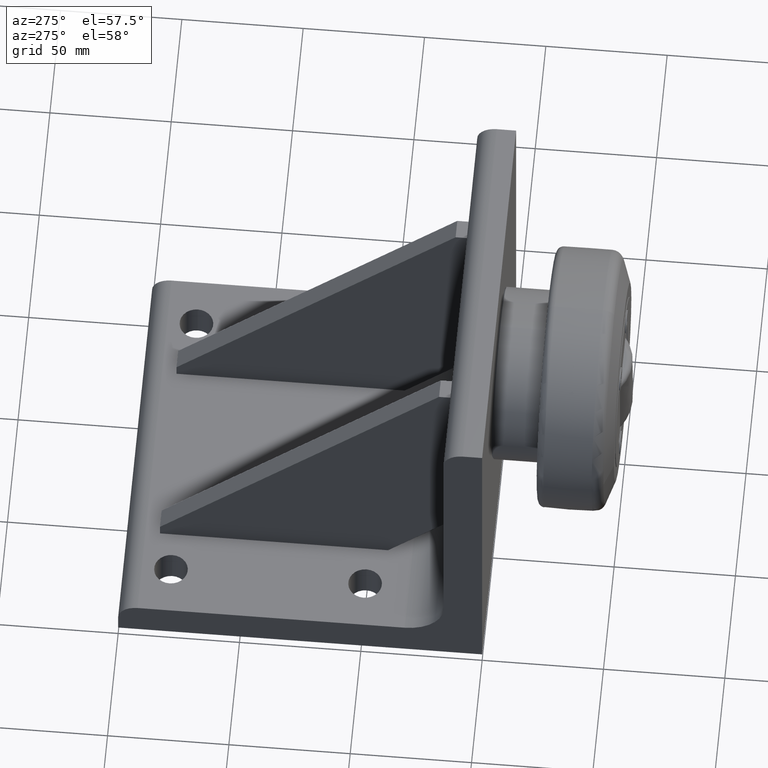
[diagram: clean part render]
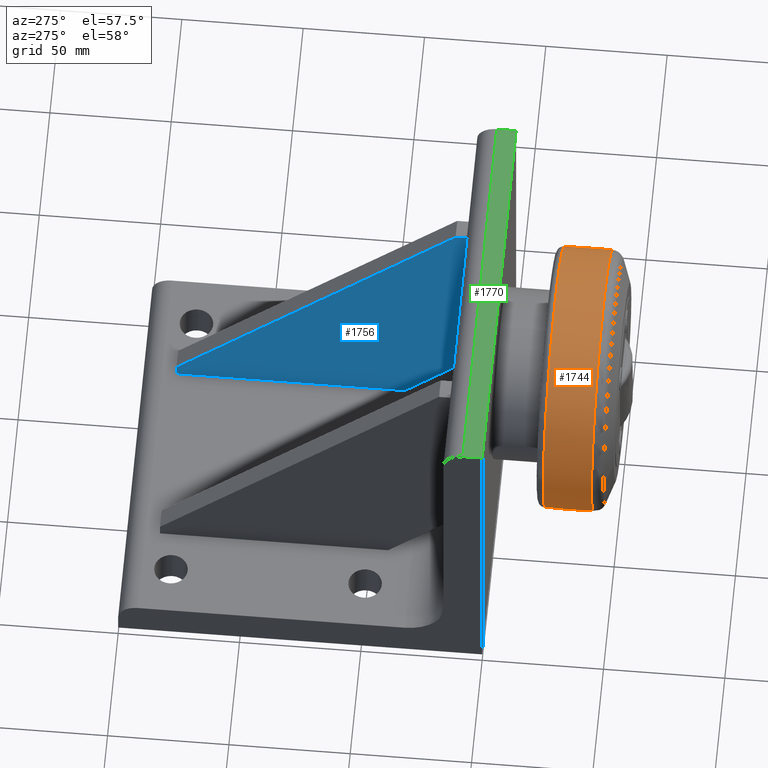
[diagram: same view with three faces highlighted in distinct colors, each labeled with its STEP entity id]
A machine part, auxiliary view with three faces highlighted in distinct colors.
Their STEP definitions:

[orange] entity #1744 — the highlighted face is a freeform B-spline surface patch.
#29=(
BOUNDED_SURFACE()
B_SPLINE_SURFACE(2,2,((#2728,#2729,#2730,#2731,#2732,#2733,#2734,#2735,
#2736),(#2737,#2738,#2739,#2740,#2741,#2742,#2743,#2744,#2745),(#2746,#2747,
#2748,#2749,#2750,#2751,#2752,#2753,#2754)),.UNSPECIFIED.,.F.,.T.,.F.)
B_SPLINE_SURFACE_WITH_KNOTS((3,3),(3,2,2,2,3),(-0.0125379413299395,0.00736868647402721),
(-3.14159265358979,-1.5707963267949,0.,1.5707963267949,3.14159265358979),
 .UNSPECIFIED.)
GEOMETRIC_REPRESENTATION_ITEM()
RATIONAL_B_SPLINE_SURFACE(((1.,0.707106781186548,1.,0.707106781186548,1.,
0.707106781186548,1.,0.707106781186548,1.),(0.999950466180123,0.707071755486614,
0.999950466180123,0.707071755486614,0.999950466180123,0.707071755486614,
0.999950466180123,0.707071755486614,0.999950466180123),(1.,0.707106781186548,
1.,0.707106781186548,1.,0.707106781186548,1.,0.707106781186548,1.)))
REPRESENTATION_ITEM('')
SURFACE()
);
#87=CIRCLE('',#1884,53.8228513526661);
#88=CIRCLE('',#1885,53.8228513526661);
#90=CIRCLE('',#1887,1000.);
#91=CIRCLE('',#1888,53.7714010432579);
#92=CIRCLE('',#1889,53.7714010432579);
#199=FACE_OUTER_BOUND('',#306,.T.);
#306=EDGE_LOOP('',(#1305,#1306,#1307,#1308,#1309,#1310));
#787=VERTEX_POINT('',#2722);
#788=VERTEX_POINT('',#2724);
#789=VERTEX_POINT('',#2755);
#790=VERTEX_POINT('',#2757);
#987=EDGE_CURVE('',#787,#788,#87,.T.);
#988=EDGE_CURVE('',#788,#787,#88,.T.);
#990=EDGE_CURVE('',#787,#789,#90,.T.);
#991=EDGE_CURVE('',#790,#789,#91,.T.);
#992=EDGE_CURVE('',#789,#790,#92,.T.);
#1305=ORIENTED_EDGE('',*,*,#988,.F.);
#1306=ORIENTED_EDGE('',*,*,#987,.F.);
#1307=ORIENTED_EDGE('',*,*,#990,.T.);
#1308=ORIENTED_EDGE('',*,*,#991,.F.);
#1309=ORIENTED_EDGE('',*,*,#992,.F.);
#1310=ORIENTED_EDGE('',*,*,#990,.F.);
#1744=ADVANCED_FACE('',(#199),#29,.F.);
#1884=AXIS2_PLACEMENT_3D('',#2725,#2197,#2198);
#1885=AXIS2_PLACEMENT_3D('',#2726,#2199,#2200);
#1887=AXIS2_PLACEMENT_3D('',#2756,#2203,#2204);
#1888=AXIS2_PLACEMENT_3D('',#2758,#2205,#2206);
#1889=AXIS2_PLACEMENT_3D('',#2759,#2207,#2208);
#2197=DIRECTION('center_axis',(3.44201606106068E-16,-1.,9.60310883656577E-18));
#2198=DIRECTION('ref_axis',(-1.,-3.04246343416414E-16,-4.04895301314711E-16));
#2199=DIRECTION('center_axis',(3.44201606106068E-16,-1.,9.60310883656577E-18));
#2200=DIRECTION('ref_axis',(-1.,-3.04246343416414E-16,-4.04895301314711E-16));
#2203=DIRECTION('center_axis',(-1.,-3.44201606106068E-16,-6.59742558737325E-16));
#2204=DIRECTION('ref_axis',(-6.59742558737325E-16,0.,1.));
#2205=DIRECTION('center_axis',(-3.44201606106068E-16,1.,-9.60310883656577E-18));
#2206=DIRECTION('ref_axis',(-1.,-3.45619473763267E-16,-4.04895301314712E-16));
#2207=DIRECTION('center_axis',(-3.44201606106068E-16,1.,-9.60310883656577E-18));
#2208=DIRECTION('ref_axis',(-1.,-3.45619473763267E-16,-4.04895301314712E-16));
#2722=CARTESIAN_POINT('',(80.,-42.7686197906162,143.822851352666));
#2724=CARTESIAN_POINT('',(133.822851352666,-42.7686197906162,90.));
#2725=CARTESIAN_POINT('Origin',(80.,-42.7686197906162,90.));
#2726=CARTESIAN_POINT('Origin',(80.,-42.7686197906162,90.));
#2728=CARTESIAN_POINT('Ctrl Pts',(80.,-22.8623871614844,143.771401043258));
#2729=CARTESIAN_POINT('Ctrl Pts',(26.2285989567422,-22.8623871614844,143.771401043258));
#2730=CARTESIAN_POINT('Ctrl Pts',(26.2285989567422,-22.8623871614844,89.9999999999999));
#2731=CARTESIAN_POINT('Ctrl Pts',(26.2285989567422,-22.8623871614844,36.2285989567422));
#2732=CARTESIAN_POINT('Ctrl Pts',(80.,-22.8623871614844,36.2285989567422));
#2733=CARTESIAN_POINT('Ctrl Pts',(133.771401043258,-22.8623871614843,36.2285989567422));
#2734=CARTESIAN_POINT('Ctrl Pts',(133.771401043258,-22.8623871614843,90.));
#2735=CARTESIAN_POINT('Ctrl Pts',(133.771401043258,-22.8623871614843,143.771401043258));
#2736=CARTESIAN_POINT('Ctrl Pts',(80.,-22.8623871614844,143.771401043258));
#2737=CARTESIAN_POINT('Ctrl Pts',(80.,-32.8152474170544,143.896195960528));
#2738=CARTESIAN_POINT('Ctrl Pts',(26.1038040394717,-32.8152474170545,143.896195960528));
#2739=CARTESIAN_POINT('Ctrl Pts',(26.1038040394717,-32.8152474170545,89.9999999999999));
#2740=CARTESIAN_POINT('Ctrl Pts',(26.1038040394718,-32.8152474170545,36.1038040394717));
#2741=CARTESIAN_POINT('Ctrl Pts',(80.,-32.8152474170544,36.1038040394717));
#2742=CARTESIAN_POINT('Ctrl Pts',(133.896195960528,-32.8152474170544,36.1038040394717));
#2743=CARTESIAN_POINT('Ctrl Pts',(133.896195960528,-32.8152474170544,90.));
#2744=CARTESIAN_POINT('Ctrl Pts',(133.896195960528,-32.8152474170544,143.896195960528));
#2745=CARTESIAN_POINT('Ctrl Pts',(80.,-32.8152474170544,143.896195960528));
#2746=CARTESIAN_POINT('Ctrl Pts',(80.,-42.7686197906161,143.822851352666));
#2747=CARTESIAN_POINT('Ctrl Pts',(26.1771486473338,-42.7686197906161,143.822851352666));
#2748=CARTESIAN_POINT('Ctrl Pts',(26.1771486473338,-42.7686197906161,89.9999999999999));
#2749=CARTESIAN_POINT('Ctrl Pts',(26.1771486473339,-42.7686197906161,36.1771486473338));
#2750=CARTESIAN_POINT('Ctrl Pts',(80.,-42.7686197906161,36.1771486473338));
#2751=CARTESIAN_POINT('Ctrl Pts',(133.822851352666,-42.7686197906161,36.1771486473338));
#2752=CARTESIAN_POINT('Ctrl Pts',(133.822851352666,-42.7686197906161,90.));
#2753=CARTESIAN_POINT('Ctrl Pts',(133.822851352666,-42.7686197906161,143.822851352666));
#2754=CARTESIAN_POINT('Ctrl Pts',(80.,-42.7686197906161,143.822851352666));
#2755=CARTESIAN_POINT('',(80.,-22.8623871614844,143.771401043258));
#2756=CARTESIAN_POINT('Origin',(80.0000000000006,-35.3999999999999,-856.15));
#2757=CARTESIAN_POINT('',(133.771401043258,-22.8623871614844,90.));
#2758=CARTESIAN_POINT('Origin',(80.,-22.8623871614844,90.));
#2759=CARTESIAN_POINT('Origin',(80.,-22.8623871614844,90.));

[blue] entity #1756 — the highlighted planar face has unit normal (-1, 0, -0).
#211=FACE_OUTER_BOUND('',#320,.T.);
#320=EDGE_LOOP('',(#1364,#1365,#1366,#1367,#1368,#1369));
#471=LINE('',#2801,#636);
#475=LINE('',#2810,#640);
#479=LINE('',#2818,#644);
#482=LINE('',#2824,#647);
#485=LINE('',#2829,#650);
#486=LINE('',#2830,#651);
#636=VECTOR('',#2253,10.);
#640=VECTOR('',#2259,10.);
#644=VECTOR('',#2265,10.);
#647=VECTOR('',#2270,10.);
#650=VECTOR('',#2275,10.);
#651=VECTOR('',#2276,10.);
#804=VERTEX_POINT('',#2799);
#805=VERTEX_POINT('',#2800);
#808=VERTEX_POINT('',#2808);
#809=VERTEX_POINT('',#2809);
#812=VERTEX_POINT('',#2817);
#814=VERTEX_POINT('',#2823);
#1011=EDGE_CURVE('',#804,#805,#471,.T.);
#1015=EDGE_CURVE('',#808,#809,#475,.T.);
#1019=EDGE_CURVE('',#809,#812,#479,.T.);
#1022=EDGE_CURVE('',#812,#814,#482,.T.);
#1025=EDGE_CURVE('',#814,#804,#485,.T.);
#1026=EDGE_CURVE('',#805,#808,#486,.T.);
#1364=ORIENTED_EDGE('',*,*,#1011,.F.);
#1365=ORIENTED_EDGE('',*,*,#1025,.F.);
#1366=ORIENTED_EDGE('',*,*,#1022,.F.);
#1367=ORIENTED_EDGE('',*,*,#1019,.F.);
#1368=ORIENTED_EDGE('',*,*,#1015,.F.);
#1369=ORIENTED_EDGE('',*,*,#1026,.F.);
#1678=PLANE('',#1911);
#1756=ADVANCED_FACE('',(#211),#1678,.T.);
#1911=AXIS2_PLACEMENT_3D('',#2828,#2273,#2274);
#2253=DIRECTION('',(1.56951843764086E-32,0.707106781186548,-0.707106781186547));
#2259=DIRECTION('',(-2.21963426090634E-32,6.68445617092847E-15,1.));
#2265=DIRECTION('',(-1.56951843764086E-32,-0.707106781186548,0.707106781186547));
#2270=DIRECTION('',(4.39037157942775E-47,-1.,-2.19732802607288E-15));
#2273=DIRECTION('center_axis',(-1.,4.86892989693316E-48,-2.21963426090634E-32));
#2274=DIRECTION('ref_axis',(-2.21963426090634E-32,-4.20971186672632E-16,
1.));
#2275=DIRECTION('',(2.21963426090634E-32,3.14839365192209E-16,-1.));
#2276=DIRECTION('',(-2.80330831107262E-49,1.,2.31986900667943E-16));
#2799=CARTESIAN_POINT('',(115.,16.,42.0050506338833));
#2800=CARTESIAN_POINT('',(115.,42.0050506338833,16.));
#2801=CARTESIAN_POINT('',(115.,16.,42.0050506338833));
#2808=CARTESIAN_POINT('',(115.,136.,16.));
#2809=CARTESIAN_POINT('',(115.,136.,21.));
#2810=CARTESIAN_POINT('',(115.,136.,16.));
#2817=CARTESIAN_POINT('',(115.,21.,136.));
#2818=CARTESIAN_POINT('',(115.,136.,21.));
#2823=CARTESIAN_POINT('',(115.,16.,136.));
#2824=CARTESIAN_POINT('',(115.,21.,136.));
#2828=CARTESIAN_POINT('Origin',(115.,61.589245006533,61.589245006533));
#2829=CARTESIAN_POINT('',(115.,16.,105.794622503267));
#2830=CARTESIAN_POINT('',(115.,38.7946225032665,16.));

[green] entity #1770 — the highlighted planar face has unit normal (0, 0, 1).
#225=FACE_OUTER_BOUND('',#336,.T.);
#336=EDGE_LOOP('',(#1440,#1441,#1442,#1443));
#468=LINE('',#2794,#633);
#515=LINE('',#2916,#680);
#516=LINE('',#2918,#681);
#517=LINE('',#2919,#682);
#633=VECTOR('',#2248,10.);
#680=VECTOR('',#2359,10.);
#681=VECTOR('',#2362,10.);
#682=VECTOR('',#2363,10.);
#801=VERTEX_POINT('',#2791);
#802=VERTEX_POINT('',#2793);
#844=VERTEX_POINT('',#2912);
#845=VERTEX_POINT('',#2914);
#1008=EDGE_CURVE('',#802,#801,#468,.T.);
#1069=EDGE_CURVE('',#845,#844,#515,.T.);
#1070=EDGE_CURVE('',#802,#845,#516,.T.);
#1071=EDGE_CURVE('',#801,#844,#517,.T.);
#1440=ORIENTED_EDGE('',*,*,#1069,.F.);
#1441=ORIENTED_EDGE('',*,*,#1070,.F.);
#1442=ORIENTED_EDGE('',*,*,#1008,.T.);
#1443=ORIENTED_EDGE('',*,*,#1071,.T.);
#1687=PLANE('',#1939);
#1770=ADVANCED_FACE('',(#225),#1687,.T.);
#1939=AXIS2_PLACEMENT_3D('',#2917,#2360,#2361);
#2248=DIRECTION('',(1.,0.,0.));
#2359=DIRECTION('',(1.,0.,0.));
#2360=DIRECTION('center_axis',(0.,0.,1.));
#2361=DIRECTION('ref_axis',(1.,0.,0.));
#2362=DIRECTION('',(0.,1.,0.));
#2363=DIRECTION('',(0.,1.,0.));
#2791=CARTESIAN_POINT('',(160.,-2.52575738102223E-14,150.));
#2793=CARTESIAN_POINT('',(0.,-2.52575738102223E-14,150.));
#2794=CARTESIAN_POINT('',(0.,-2.52575738102223E-14,150.));
#2912=CARTESIAN_POINT('',(160.,7.99999999999996,150.));
#2914=CARTESIAN_POINT('',(0.,7.99999999999996,150.));
#2916=CARTESIAN_POINT('',(0.,7.99999999999996,150.));
#2917=CARTESIAN_POINT('Origin',(0.,-2.52575738102223E-14,150.));
#2918=CARTESIAN_POINT('',(0.,-2.52575738102223E-14,150.));
#2919=CARTESIAN_POINT('',(160.,-2.52575738102223E-14,150.));